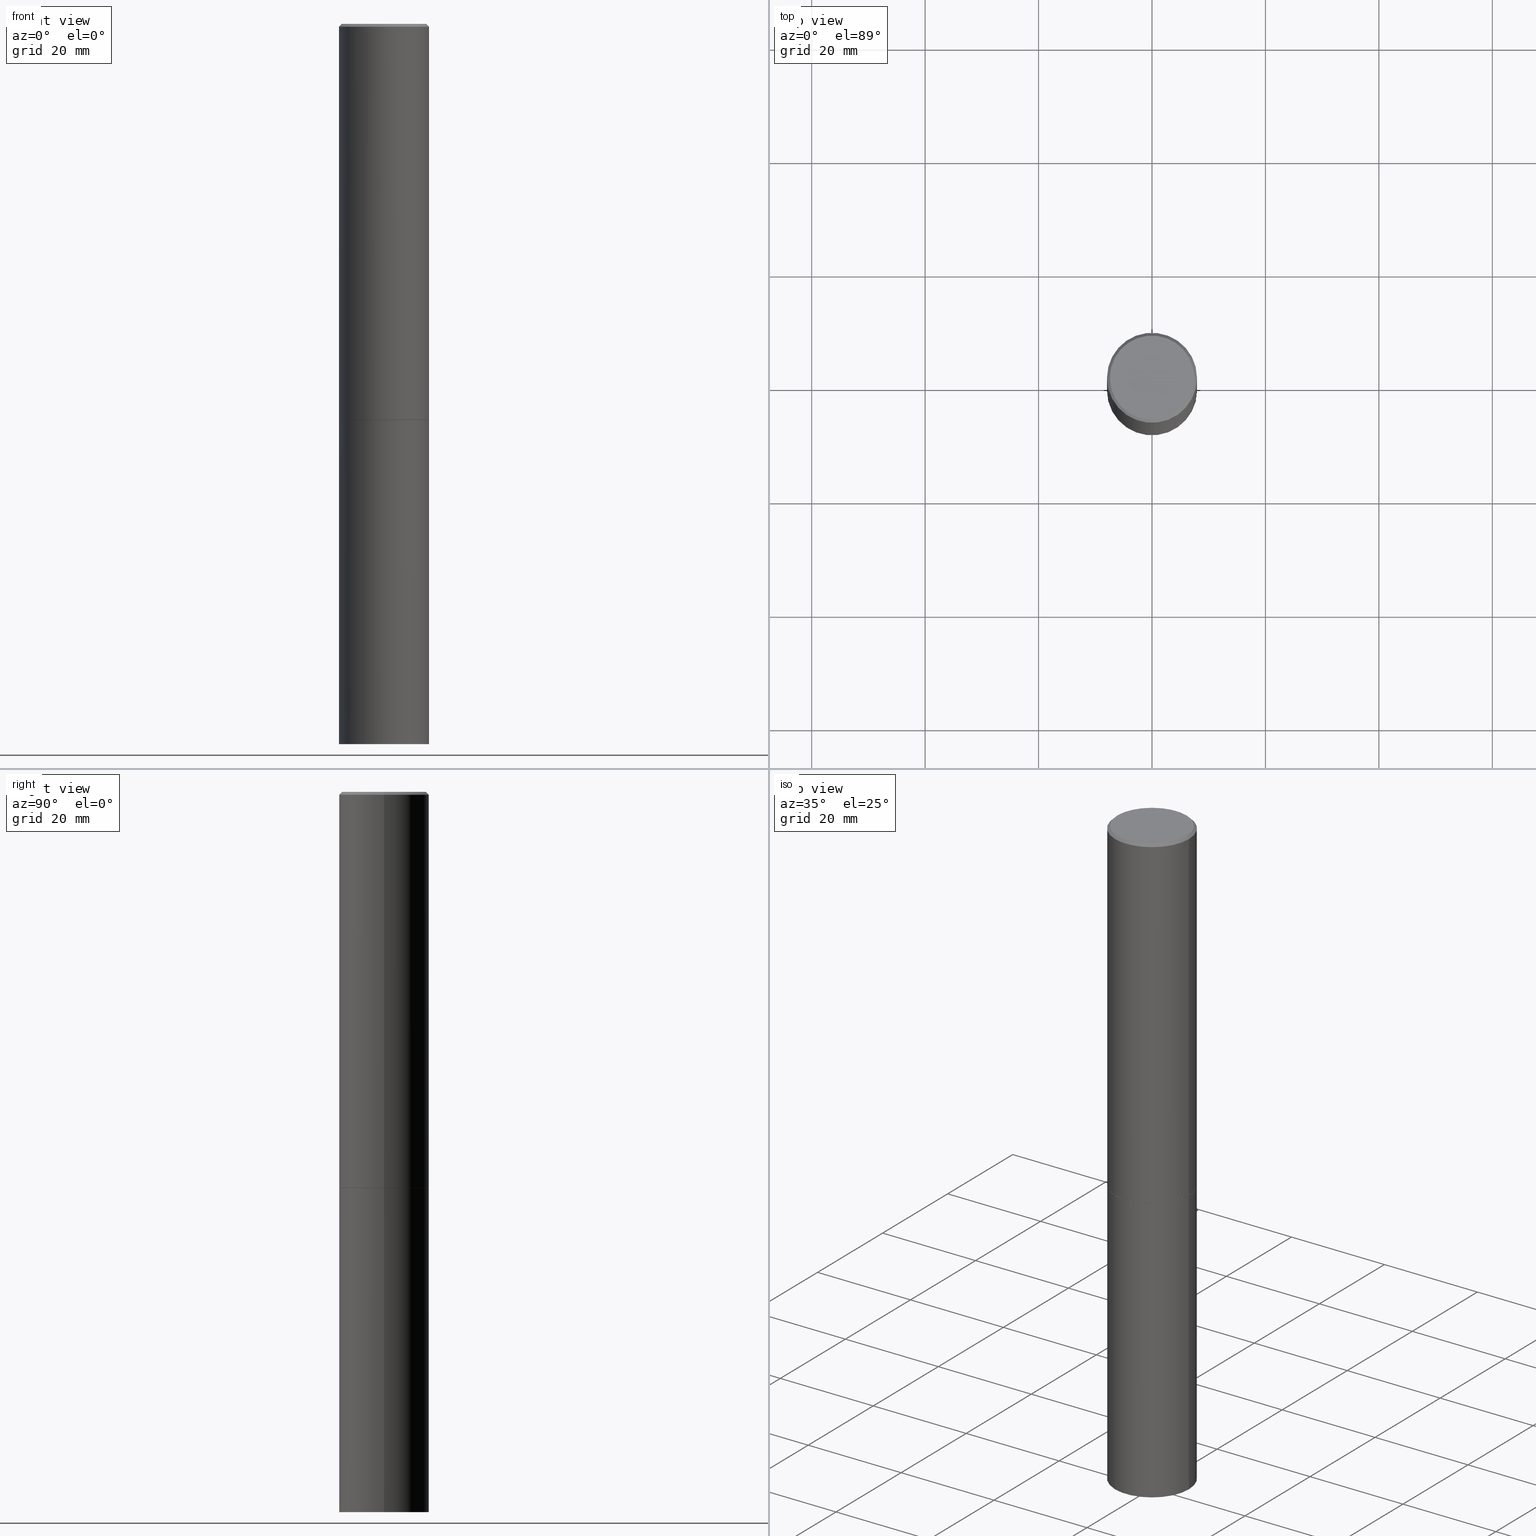
[diagram: canonical four-view strip — front | top / right | iso, engineering-drawing reading convention]
A machine part, canonical four-view strip (front | top / right | iso — engineering-drawing reading convention). The complete STEP part file that produces these views, byte-faithful:
ISO-10303-21;
HEADER;
FILE_DESCRIPTION (( 'STEP AP203' ),
    '1' );
FILE_NAME ('33113.STEP',
    '2023-03-21T20:38:24',
    ( '' ),
    ( '' ),
    'SwSTEP 2.0',
    'SolidWorks 2022',
    '' );
FILE_SCHEMA (( 'CONFIG_CONTROL_DESIGN' ));
ENDSEC;

DATA;
#1 = ORIENTED_EDGE ( 'NONE', *, *, #246, .T. ) ;
#2 = FACE_OUTER_BOUND ( 'NONE', #214, .T. ) ;
#3 = DIRECTION ( 'NONE',  ( -2.445468806185136597E-29, 3.491481338843145583E-15, 1.000000000000000000 ) ) ;
#4 = CLOSED_SHELL ( 'NONE', ( #368, #329, #131, #217, #96, #69, #8, #254 ) ) ;
#5 = AXIS2_PLACEMENT_3D ( 'NONE', #269, #3, #193 ) ;
#6 = DIRECTION ( 'NONE',  ( -2.445468806185136877E-29, 3.491481338843145188E-15, 1.000000000000000000 ) ) ;
#7 = DIRECTION ( 'NONE',  ( -2.445468806185136597E-29, 3.491481338843145583E-15, 1.000000000000000000 ) ) ;
#8 = ADVANCED_FACE ( 'NONE', ( #12 ), #72, .F. ) ;
#9 = VERTEX_POINT ( 'NONE', #172 ) ;
#10 = DIRECTION ( 'NONE',  ( 1.000000000000000000, -6.982962677686269077E-15, 0.000000000000000000 ) ) ;
#11 = CARTESIAN_POINT ( 'NONE',  ( 2.182175836777025400E-15, 0.3124999999999903966, -2.750000000000000888 ) ) ;
#12 = FACE_OUTER_BOUND ( 'NONE', #264, .T. ) ;
#13 = DIRECTION ( 'NONE',  ( 1.000000000000000000, -6.982962677686265922E-15, 0.000000000000000000 ) ) ;
#14 = ADVANCED_FACE ( 'NONE', ( #312 ), #377, .T. ) ;
#15 = CIRCLE ( 'NONE', #196, 0.2924999999999996492 ) ;
#16 = PERSON_AND_ORGANIZATION ( #244, #240 ) ;
#17 = UNCERTAINTY_MEASURE_WITH_UNIT (LENGTH_MEASURE( 1.000000000000000082E-05 ), #94, 'distance_accuracy_value', 'NONE');
#18 = ORIENTED_EDGE ( 'NONE', *, *, #176, .T. ) ;
#19 = CARTESIAN_POINT ( 'NONE',  ( 4.890937612370287172E-31, -6.982962677686310098E-17, -0.02000000000000005593 ) ) ;
#20 = DATE_AND_TIME ( #351, #112 ) ;
#21 = CARTESIAN_POINT ( 'NONE',  ( -0.3125000000000000000, 2.220446049250313081E-15, -1.537167215704658232E-29 ) ) ;
#22 = VERTEX_POINT ( 'NONE', #78 ) ;
#23 = COORDINATED_UNIVERSAL_TIME_OFFSET ( 5, 0, .BEHIND. ) ;
#24 = DIRECTION ( 'NONE',  ( 2.445468806185136597E-29, -3.491481338843145583E-15, -1.000000000000000000 ) ) ;
#25 = AXIS2_PLACEMENT_3D ( 'NONE', #79, #175, #13 ) ;
#26 = PERSON_AND_ORGANIZATION ( #244, #240 ) ;
#27 = ADVANCED_FACE ( 'NONE', ( #375 ), #103, .F. ) ;
#28 = ORIENTED_EDGE ( 'NONE', *, *, #267, .T. ) ;
#29 = ORIENTED_EDGE ( 'NONE', *, *, #335, .T. ) ;
#30 = AXIS2_PLACEMENT_3D ( 'NONE', #372, #24, #253 ) ;
#31 = ORIENTED_EDGE ( 'NONE', *, *, #390, .F. ) ;
#32 = APPROVAL ( #86, 'UNSPECIFIED' ) ;
#33 = CARTESIAN_POINT ( 'NONE',  ( -5.330798331129090803E-19, -1.740022519941044087E-14, -4.983622568974052314 ) ) ;
#34 = DIRECTION ( 'NONE',  ( -2.445468806185136597E-29, 3.491481338843145583E-15, 1.000000000000000000 ) ) ;
#35 = CARTESIAN_POINT ( 'NONE',  ( 0.3125000000000000000, -2.182175836776958347E-15, 1.523805242436230075E-29 ) ) ;
#36 = VERTEX_POINT ( 'NONE', #200 ) ;
#37 = EDGE_CURVE ( 'NONE', #81, #22, #15, .T. ) ;
#38 = DIRECTION ( 'NONE',  ( -2.445468806185136877E-29, 3.491481338843145188E-15, 1.000000000000000000 ) ) ;
#39 = LINE ( 'NONE', #278, #388 ) ;
#40 = AXIS2_PLACEMENT_3D ( 'NONE', #360, #160, #97 ) ;
#41 = APPROVAL ( #82, 'UNSPECIFIED' ) ;
#42 = SECURITY_CLASSIFICATION ( '', '', #53 ) ;
#43 = ORIENTED_EDGE ( 'NONE', *, *, #89, .F. ) ;
#44 =( NAMED_UNIT ( * ) PLANE_ANGLE_UNIT ( ) SI_UNIT ( $, .RADIAN. ) );
#45 = EDGE_CURVE ( 'NONE', #36, #330, #195, .T. ) ;
#46 = VERTEX_POINT ( 'NONE', #306 ) ;
#47 = DATE_AND_TIME ( #199, #294 ) ;
#48 = CARTESIAN_POINT ( 'NONE',  ( 0.3124999999999998890, -1.960131231851933350E-14, -5.000000000000000000 ) ) ;
#49 = DATE_TIME_ROLE ( 'creation_date' ) ;
#50 = CIRCLE ( 'NONE', #207, 0.3124999999999996669 ) ;
#51 = DATE_AND_TIME ( #142, #87 ) ;
#52 = EDGE_CURVE ( 'NONE', #330, #356, #39, .T. ) ;
#53 = SECURITY_CLASSIFICATION_LEVEL ( 'unclassified' ) ;
#54 = DIRECTION ( 'NONE',  ( -2.445468806185136597E-29, 3.491481338843145583E-15, 1.000000000000000000 ) ) ;
#55 = CARTESIAN_POINT ( 'NONE',  ( 0.000000000000000000, 0.000000000000000000, 0.000000000000000000 ) ) ;
#56 = CARTESIAN_POINT ( 'NONE',  ( 0.3124999999999996669, -2.213735251080464545E-15, -0.02000000000000005593 ) ) ;
#57 = EDGE_CURVE ( 'NONE', #46, #373, #145, .T. ) ;
#58 = ORIENTED_EDGE ( 'NONE', *, *, #146, .T. ) ;
#59 = DIMENSIONAL_EXPONENTS ( 1.000000000000000000, 0.000000000000000000, 0.000000000000000000, 0.000000000000000000, 0.000000000000000000, 0.000000000000000000, 0.000000000000000000 ) ;
#60 = VECTOR ( 'NONE', #266, 39.37007874015748143 ) ;
#61 = ORIENTED_EDGE ( 'NONE', *, *, #387, .T. ) ;
#62 = EDGE_CURVE ( 'NONE', #169, #93, #291, .T. ) ;
#63 = PRODUCT_RELATED_PRODUCT_CATEGORY ( 'detail', '', ( #235 ) ) ;
#64 = VERTEX_POINT ( 'NONE', #384 ) ;
#65 = EDGE_CURVE ( 'NONE', #356, #190, #50, .T. ) ;
#66 = ORIENTED_EDGE ( 'NONE', *, *, #37, .F. ) ;
#67 = AXIS2_PLACEMENT_3D ( 'NONE', #302, #163, #366 ) ;
#68 = ORIENTED_EDGE ( 'NONE', *, *, #180, .F. ) ;
#69 = ADVANCED_FACE ( 'NONE', ( #208 ), #263, .T. ) ;
#70 = CARTESIAN_POINT ( 'NONE',  ( 0.000000000000000000, 0.000000000000000000, 0.000000000000000000 ) ) ;
#71 = CARTESIAN_POINT ( 'NONE',  ( 0.3125000000000000000, -1.178025803725676678E-14, -2.749000000000000110 ) ) ;
#72 = PLANE ( 'NONE',  #178 ) ;
#73 = APPROVAL_PERSON_ORGANIZATION ( #85, #41, #76 ) ;
#74 = DIRECTION ( 'NONE',  ( 2.445468806185136597E-29, -3.491481338843145583E-15, -1.000000000000000000 ) ) ;
#75 = DIRECTION ( 'NONE',  ( 2.438088387897960049E-29, -3.491481338843145188E-15, -1.000000000000000000 ) ) ;
#76 = APPROVAL_ROLE ( '' ) ;
#77 = CARTESIAN_POINT ( 'NONE',  ( 6.725039217009124520E-29, -9.601573681818649859E-15, -2.750000000000000000 ) ) ;
#78 = CARTESIAN_POINT ( 'NONE',  ( -0.2924999999999996492, 2.077431396611661822E-15, 4.268512490086005323E-18 ) ) ;
#79 = CARTESIAN_POINT ( 'NONE',  ( 6.725039217009124520E-29, -9.601573681818649859E-15, -2.750000000000000000 ) ) ;
#80 = APPROVAL_ROLE ( '' ) ;
#81 = VERTEX_POINT ( 'NONE', #187 ) ;
#82 = APPROVAL_STATUS ( 'not_yet_approved' ) ;
#83 = AXIS2_PLACEMENT_3D ( 'NONE', #119, #324, #252 ) ;
#84 = DIRECTION ( 'NONE',  ( 0.7071067811865469066, -7.319954787623254468E-15, -0.7071067811865481278 ) ) ;
#85 = PERSON_AND_ORGANIZATION ( #244, #240 ) ;
#86 = APPROVAL_STATUS ( 'not_yet_approved' ) ;
#87 = LOCAL_TIME ( 16, 38, 24.00000000000000000, #23 ) ;
#88 = VECTOR ( 'NONE', #365, 39.37007874015748143 ) ;
#89 = EDGE_CURVE ( 'NONE', #328, #330, #140, .T. ) ;
#90 = FACE_OUTER_BOUND ( 'NONE', #128, .T. ) ;
#91 = EDGE_LOOP ( 'NONE', ( #68, #122, #95, #158 ) ) ;
#92 = CARTESIAN_POINT ( 'NONE',  ( -0.3124999999999996669, 2.112346210000092682E-15, -0.02000000000000005593 ) ) ;
#93 = VERTEX_POINT ( 'NONE', #299 ) ;
#94 =( CONVERSION_BASED_UNIT ( 'INCH', #161 ) LENGTH_UNIT ( ) NAMED_UNIT ( #59 ) );
#95 = ORIENTED_EDGE ( 'NONE', *, *, #194, .T. ) ;
#96 = ADVANCED_FACE ( 'NONE', ( #219 ), #349, .T. ) ;
#97 = DIRECTION ( 'NONE',  ( -1.000000000000000000, 6.982962677686266711E-15, 0.000000000000000000 ) ) ;
#98 = CC_DESIGN_PERSON_AND_ORGANIZATION_ASSIGNMENT ( #380, #379, ( #184 ) ) ;
#99 = CARTESIAN_POINT ( 'NONE',  ( 0.3114999999999999991, -1.177676655591792219E-14, -2.750000000000000000 ) ) ;
#100 = CARTESIAN_POINT ( 'NONE',  ( 1.222734403092568523E-28, -1.745740669421572989E-14, -5.000000000000000000 ) ) ;
#101 = ORIENTED_EDGE ( 'NONE', *, *, #267, .F. ) ;
#102 = EDGE_CURVE ( 'NONE', #328, #190, #258, .T. ) ;
#103 = CONICAL_SURFACE ( 'NONE', #220, 751.2258538476995682, 1.518436449235075925 ) ;
#104 = ORIENTED_EDGE ( 'NONE', *, *, #62, .F. ) ;
#105 = VECTOR ( 'NONE', #239, 39.37007874015748143 ) ;
#106 = CYLINDRICAL_SURFACE ( 'NONE', #137, 0.3124999999999998890 ) ;
#107 = DIRECTION ( 'NONE',  ( -2.445468806185136597E-29, 3.491481338843145583E-15, 1.000000000000000000 ) ) ;
#108 = FACE_OUTER_BOUND ( 'NONE', #255, .T. ) ;
#109 = CC_DESIGN_PERSON_AND_ORGANIZATION_ASSIGNMENT ( #177, #353, ( #42 ) ) ;
#110 = CC_DESIGN_APPROVAL ( #32, ( #42 ) ) ;
#111 = APPROVAL_PERSON_ORGANIZATION ( #16, #166, #151 ) ;
#112 = LOCAL_TIME ( 16, 38, 24.00000000000000000, #348 ) ;
#113 = DIRECTION ( 'NONE',  ( 1.000000000000000000, -6.982962677686265922E-15, 4.876176775795935793E-29 ) ) ;
#114 = DATE_AND_TIME ( #378, #272 ) ;
#115 = ORIENTED_EDGE ( 'NONE', *, *, #390, .T. ) ;
#116 = PERSON_AND_ORGANIZATION ( #244, #240 ) ;
#117 = AXIS2_PLACEMENT_3D ( 'NONE', #274, #288, #10 ) ;
#118 = COORDINATED_UNIVERSAL_TIME_OFFSET ( 5, 0, .BEHIND. ) ;
#119 = CARTESIAN_POINT ( 'NONE',  ( 6.725039217009124520E-29, -9.601573681818649859E-15, -2.750000000000000000 ) ) ;
#120 = CIRCLE ( 'NONE', #270, 0.3124999999999996669 ) ;
#121 = EDGE_CURVE ( 'NONE', #46, #169, #165, .T. ) ;
#122 = ORIENTED_EDGE ( 'NONE', *, *, #273, .F. ) ;
#123 = MECHANICAL_CONTEXT ( 'NONE', #164, 'mechanical' ) ;
#124 = ORIENTED_EDGE ( 'NONE', *, *, #180, .T. ) ;
#125 = ORIENTED_EDGE ( 'NONE', *, *, #89, .T. ) ;
#126 = DIRECTION ( 'NONE',  ( 1.000000000000000000, -6.982962677686269077E-15, 0.000000000000000000 ) ) ;
#127 = CIRCLE ( 'NONE', #179, 0.3125000000000000000 ) ;
#128 = EDGE_LOOP ( 'NONE', ( #29, #325, #43, #213 ) ) ;
#129 =( NAMED_UNIT ( * ) SI_UNIT ( $, .STERADIAN. ) SOLID_ANGLE_UNIT ( ) );
#130 = DIRECTION ( 'NONE',  ( 1.000000000000000000, -6.982962677686269077E-15, 0.000000000000000000 ) ) ;
#131 = ADVANCED_FACE ( 'NONE', ( #334 ), #197, .T. ) ;
#132 = CARTESIAN_POINT ( 'NONE',  ( 0.3124999999999998890, -2.182175836776957558E-15, 1.523805242436229235E-29 ) ) ;
#133 = CC_DESIGN_APPROVAL ( #41, ( #248 ) ) ;
#134 = CARTESIAN_POINT ( 'NONE',  ( 0.3124999999999996669, -2.213735251080464545E-15, -0.02000000000000005593 ) ) ;
#135 = FACE_OUTER_BOUND ( 'NONE', #296, .T. ) ;
#136 = DIRECTION ( 'NONE',  ( 1.000000000000000000, -6.982962677686266711E-15, 4.876067333457695642E-29 ) ) ;
#137 = AXIS2_PLACEMENT_3D ( 'NONE', #70, #305, #310 ) ;
#138 = EDGE_LOOP ( 'NONE', ( #204, #18, #58, #186 ) ) ;
#139 = CARTESIAN_POINT ( 'NONE',  ( 6.725039217009124520E-29, -9.601573681818649859E-15, -2.750000000000000000 ) ) ;
#140 = CIRCLE ( 'NONE', #215, 0.3125000000000000000 ) ;
#141 = CC_DESIGN_SECURITY_CLASSIFICATION ( #42, ( #184 ) ) ;
#142 = CALENDAR_DATE ( 2023, 21, 3 ) ;
#143 = DIRECTION ( 'NONE',  ( -2.445468806185136597E-29, 3.491481338843145583E-15, 1.000000000000000000 ) ) ;
#144 = DIRECTION ( 'NONE',  ( 0.000000000000000000, 0.000000000000000000, 1.000000000000000000 ) ) ;
#145 = LINE ( 'NONE', #206, #314 ) ;
#146 = EDGE_CURVE ( 'NONE', #9, #328, #212, .T. ) ;
#147 = DIRECTION ( 'NONE',  ( 1.000000000000000000, -6.982962677686266711E-15, 0.000000000000000000 ) ) ;
#148 = ORIENTED_EDGE ( 'NONE', *, *, #102, .F. ) ;
#149 = AXIS2_PLACEMENT_3D ( 'NONE', #55, #144, #292 ) ;
#150 = APPROVAL_DATE_TIME ( #51, #32 ) ;
#151 = APPROVAL_ROLE ( '' ) ;
#152 = CARTESIAN_POINT ( 'NONE',  ( 4.890937612370287172E-31, -6.982962677686310098E-17, -0.02000000000000005593 ) ) ;
#153 = DIRECTION ( 'NONE',  ( 1.000000000000000000, -6.982962677686266711E-15, 4.876176775795936353E-29 ) ) ;
#154 = CARTESIAN_POINT ( 'NONE',  ( 6.722593748202941159E-29, -9.598082200479808430E-15, -2.749000000000000110 ) ) ;
#155 = ORIENTED_EDGE ( 'NONE', *, *, #273, .T. ) ;
#156 = DIRECTION ( 'NONE',  ( -1.000000000000000000, 6.982962677686266711E-15, 0.000000000000000000 ) ) ;
#157 = CONICAL_SURFACE ( 'NONE', #370, 0.3124999999999996669, 0.7853981633974473908 ) ;
#158 = ORIENTED_EDGE ( 'NONE', *, *, #65, .T. ) ;
#159 = EDGE_LOOP ( 'NONE', ( #66, #124, #189, #227 ) ) ;
#160 = DIRECTION ( 'NONE',  ( 2.445468806185136597E-29, -3.491481338843145583E-15, -1.000000000000000000 ) ) ;
#161 = LENGTH_MEASURE_WITH_UNIT ( LENGTH_MEASURE( 0.02539999999999999897 ), #228 );
#162 = DIRECTION ( 'NONE',  ( 1.000000000000000000, -6.982962677686265922E-15, 0.000000000000000000 ) ) ;
#163 = DIRECTION ( 'NONE',  ( 2.438088387897960049E-29, -3.491481338843145188E-15, -1.000000000000000000 ) ) ;
#164 = APPLICATION_CONTEXT ( 'configuration controlled 3d designs of mechanical parts and assemblies' ) ;
#165 = LINE ( 'NONE', #33, #88 ) ;
#166 = APPROVAL ( #218, 'UNSPECIFIED' ) ;
#167 = LINE ( 'NONE', #35, #303 ) ;
#168 = ADVANCED_FACE ( 'NONE', ( #2 ), #283, .F. ) ;
#169 = VERTEX_POINT ( 'NONE', #221 ) ;
#170 = AXIS2_PLACEMENT_3D ( 'NONE', #374, #280, #352 ) ;
#171 = CARTESIAN_POINT ( 'NONE',  ( 1.084655929903340106E-27, -1.548601204294555356E-13, -44.35370130913153019 ) ) ;
#172 = CARTESIAN_POINT ( 'NONE',  ( 0.3114999999999999991, -1.177676655591792219E-14, -2.750000000000000000 ) ) ;
#173 = CC_DESIGN_PERSON_AND_ORGANIZATION_ASSIGNMENT ( #116, #289, ( #235 ) ) ;
#174 = DIRECTION ( 'NONE',  ( -2.445468806185136597E-29, 3.491481338843145583E-15, 1.000000000000000000 ) ) ;
#175 = DIRECTION ( 'NONE',  ( -2.445468806185136597E-29, 3.491481338843145583E-15, 1.000000000000000000 ) ) ;
#176 = EDGE_CURVE ( 'NONE', #36, #9, #286, .T. ) ;
#177 = PERSON_AND_ORGANIZATION ( #244, #240 ) ;
#178 = AXIS2_PLACEMENT_3D ( 'NONE', #139, #344, #113 ) ;
#179 = AXIS2_PLACEMENT_3D ( 'NONE', #100, #275, #242 ) ;
#180 = EDGE_CURVE ( 'NONE', #81, #190, #340, .T. ) ;
#181 = ADVANCED_BREP_SHAPE_REPRESENTATION ( '33113', ( #332, #327, #149 ), #308 ) ;
#182 = SHAPE_DEFINITION_REPRESENTATION ( #298, #181 ) ;
#183 = DIRECTION ( 'NONE',  ( 1.000000000000000000, -6.982962677686266711E-15, 4.876176775795935232E-29 ) ) ;
#184 = PRODUCT_DEFINITION_FORMATION_WITH_SPECIFIED_SOURCE ( 'ANY', '', #235, .NOT_KNOWN. ) ;
#185 = DIRECTION ( 'NONE',  ( 0.9986295347545743883, -7.033825938271991601E-15, -0.05233595624293465448 ) ) ;
#186 = ORIENTED_EDGE ( 'NONE', *, *, #246, .F. ) ;
#187 = CARTESIAN_POINT ( 'NONE',  ( 0.2924999999999996492, -2.110215457714317564E-15, 4.268512490114932791E-18 ) ) ;
#188 = DIRECTION ( 'NONE',  ( 1.000000000000000000, -6.982962677686269077E-15, 0.000000000000000000 ) ) ;
#189 = ORIENTED_EDGE ( 'NONE', *, *, #385, .T. ) ;
#190 = VERTEX_POINT ( 'NONE', #56 ) ;
#191 = ADVANCED_FACE ( 'NONE', ( #317 ), #315, .F. ) ;
#192 = CIRCLE ( 'NONE', #376, 0.3125000000000000000 ) ;
#193 = DIRECTION ( 'NONE',  ( 1.000000000000000000, -6.982962677686265922E-15, 0.000000000000000000 ) ) ;
#194 = EDGE_CURVE ( 'NONE', #22, #356, #311, .T. ) ;
#195 = LINE ( 'NONE', #247, #285 ) ;
#196 = AXIS2_PLACEMENT_3D ( 'NONE', #287, #7, #136 ) ;
#197 = CONICAL_SURFACE ( 'NONE', #40, 0.3124999999999996669, 0.7853981633974473908 ) ;
#198 = EDGE_CURVE ( 'NONE', #373, #64, #167, .T. ) ;
#199 = CALENDAR_DATE ( 2023, 21, 3 ) ;
#200 = CARTESIAN_POINT ( 'NONE',  ( -0.3114999999999999991, -7.382934605577716173E-15, -2.750000000000000000 ) ) ;
#201 = DIRECTION ( 'NONE',  ( -1.000000000000000000, 6.982962677686265922E-15, -4.876176775795935793E-29 ) ) ;
#202 = AXIS2_PLACEMENT_3D ( 'NONE', #381, #54, #183 ) ;
#203 = PERSON_AND_ORGANIZATION ( #244, #240 ) ;
#204 = ORIENTED_EDGE ( 'NONE', *, *, #45, .F. ) ;
#205 = CALENDAR_DATE ( 2023, 21, 3 ) ;
#206 = CARTESIAN_POINT ( 'NONE',  ( 5.330798333566549667E-19, -1.740022519941044087E-14, -4.983622568974052314 ) ) ;
#207 = AXIS2_PLACEMENT_3D ( 'NONE', #152, #261, #147 ) ;
#208 = FACE_OUTER_BOUND ( 'NONE', #138, .T. ) ;
#209 = DIRECTION ( 'NONE',  ( -2.445468806185136597E-29, 3.491481338843145583E-15, 1.000000000000000000 ) ) ;
#210 = ORIENTED_EDGE ( 'NONE', *, *, #335, .F. ) ;
#211 = ADVANCED_FACE ( 'NONE', ( #108 ), #309, .T. ) ;
#212 = LINE ( 'NONE', #99, #60 ) ;
#213 = ORIENTED_EDGE ( 'NONE', *, *, #146, .F. ) ;
#214 = EDGE_LOOP ( 'NONE', ( #276, #61 ) ) ;
#215 = AXIS2_PLACEMENT_3D ( 'NONE', #386, #223, #188 ) ;
#216 = CIRCLE ( 'NONE', #357, 0.2924999999999996492 ) ;
#217 = ADVANCED_FACE ( 'NONE', ( #259 ), #157, .T. ) ;
#218 = APPROVAL_STATUS ( 'not_yet_approved' ) ;
#219 = FACE_OUTER_BOUND ( 'NONE', #229, .T. ) ;
#220 = AXIS2_PLACEMENT_3D ( 'NONE', #171, #74, #347 ) ;
#221 = CARTESIAN_POINT ( 'NONE',  ( -0.3124999999999998890, -1.527523085743876996E-14, -5.000000000000000000 ) ) ;
#222 = AXIS2_PLACEMENT_3D ( 'NONE', #11, #75, #201 ) ;
#223 = DIRECTION ( 'NONE',  ( -2.445468806185136597E-29, 3.491481338843145583E-15, 1.000000000000000000 ) ) ;
#224 = DIRECTION ( 'NONE',  ( -0.7071067811865469066, 2.468850131082250355E-15, -0.7071067811865481278 ) ) ;
#225 = EDGE_LOOP ( 'NONE', ( #28, #382, #236, #363 ) ) ;
#226 = PERSON_AND_ORGANIZATION ( #244, #240 ) ;
#227 = ORIENTED_EDGE ( 'NONE', *, *, #194, .F. ) ;
#228 =( LENGTH_UNIT ( ) NAMED_UNIT ( * ) SI_UNIT ( $, .METRE. ) );
#229 = EDGE_LOOP ( 'NONE', ( #238, #1, #241, #322 ) ) ;
#230 = APPROVAL_PERSON_ORGANIZATION ( #26, #32, #80 ) ;
#231 = AXIS2_PLACEMENT_3D ( 'NONE', #250, #174, #279 ) ;
#232 = VECTOR ( 'NONE', #224, 39.37007874015748143 ) ;
#233 = ORIENTED_EDGE ( 'NONE', *, *, #57, .F. ) ;
#234 = FACE_OUTER_BOUND ( 'NONE', #318, .T. ) ;
#235 = PRODUCT ( '33113', '33113', '', ( #123 ) ) ;
#236 = ORIENTED_EDGE ( 'NONE', *, *, #346, .F. ) ;
#237 = DIRECTION ( 'NONE',  ( 1.000000000000000000, -6.982962677686266711E-15, 4.876067333457695642E-29 ) ) ;
#238 = ORIENTED_EDGE ( 'NONE', *, *, #52, .F. ) ;
#239 = DIRECTION ( 'NONE',  ( -2.445468806185136877E-29, 3.491481338843145188E-15, 1.000000000000000000 ) ) ;
#240 = ORGANIZATION ( 'UNSPECIFIED', 'UNSPECIFIED', '' ) ;
#241 = ORIENTED_EDGE ( 'NONE', *, *, #102, .T. ) ;
#242 = DIRECTION ( 'NONE',  ( 1.000000000000000000, -6.982962677686269077E-15, 0.000000000000000000 ) ) ;
#243 = CARTESIAN_POINT ( 'NONE',  ( 0.000000000000000000, 0.000000000000000000, 0.000000000000000000 ) ) ;
#244 = PERSON ( 'UNSPECIFIED', 'UNSPECIFIED', 'UNSPECIFIED', ('UNSPECIFIED'), ('UNSPECIFIED'), ('UNSPECIFIED') ) ;
#245 = AXIS2_PLACEMENT_3D ( 'NONE', #77, #34, #162 ) ;
#246 = EDGE_CURVE ( 'NONE', #330, #328, #336, .T. ) ;
#247 = CARTESIAN_POINT ( 'NONE',  ( -0.3114999999999999991, -7.388233059925938575E-15, -2.750000000000000000 ) ) ;
#248 = PRODUCT_DEFINITION ( 'UNKNOWN', '', #184, #281 ) ;
#249 = CARTESIAN_POINT ( 'NONE',  ( -0.3125000000000000000, -2.613509864378020417E-15, -2.749000000000000110 ) ) ;
#250 = CARTESIAN_POINT ( 'NONE',  ( 0.000000000000000000, 0.000000000000000000, 0.000000000000000000 ) ) ;
#251 = AXIS2_PLACEMENT_3D ( 'NONE', #243, #209, #153 ) ;
#252 = DIRECTION ( 'NONE',  ( 1.000000000000000000, -6.982962677686265922E-15, 0.000000000000000000 ) ) ;
#253 = DIRECTION ( 'NONE',  ( -1.000000000000000000, 6.982962677686266711E-15, 0.000000000000000000 ) ) ;
#254 = ADVANCED_FACE ( 'NONE', ( #234 ), #361, .F. ) ;
#255 = EDGE_LOOP ( 'NONE', ( #104, #115, #301, #359 ) ) ;
#256 = VECTOR ( 'NONE', #84, 39.37007874015748143 ) ;
#257 = PERSON_AND_ORGANIZATION_ROLE ( 'creator' ) ;
#258 = LINE ( 'NONE', #132, #105 ) ;
#259 = FACE_OUTER_BOUND ( 'NONE', #91, .T. ) ;
#260 = DATE_TIME_ROLE ( 'classification_date' ) ;
#261 = DIRECTION ( 'NONE',  ( -2.445468806185136597E-29, 3.491481338843145583E-15, 1.000000000000000000 ) ) ;
#262 = CARTESIAN_POINT ( 'NONE',  ( -0.3124999999999996669, 2.112346210000092682E-15, -0.02000000000000005593 ) ) ;
#263 = CONICAL_SURFACE ( 'NONE', #83, 0.3114999999999999991, 0.7853981633975507526 ) ;
#264 = EDGE_LOOP ( 'NONE', ( #210, #364 ) ) ;
#265 = EDGE_LOOP ( 'NONE', ( #233, #383, #101 ) ) ;
#266 = DIRECTION ( 'NONE',  ( 0.7071067811866199593, -2.468850131083015945E-15, 0.7071067811864750752 ) ) ;
#267 = EDGE_CURVE ( 'NONE', #373, #169, #127, .T. ) ;
#268 = DIRECTION ( 'NONE',  ( -2.445468806185136597E-29, 3.491481338843145583E-15, 1.000000000000000000 ) ) ;
#269 = CARTESIAN_POINT ( 'NONE',  ( 6.725039217009124520E-29, -9.601573681818649859E-15, -2.750000000000000000 ) ) ;
#270 = AXIS2_PLACEMENT_3D ( 'NONE', #19, #143, #342 ) ;
#271 = CARTESIAN_POINT ( 'NONE',  ( 6.725039217009124520E-29, -9.601573681818649859E-15, -2.750000000000000000 ) ) ;
#272 = LOCAL_TIME ( 16, 38, 24.00000000000000000, #118 ) ;
#273 = EDGE_CURVE ( 'NONE', #22, #81, #216, .T. ) ;
#274 = CARTESIAN_POINT ( 'NONE',  ( 6.725039217009124520E-29, -9.601573681818649859E-15, -2.750000000000000000 ) ) ;
#275 = DIRECTION ( 'NONE',  ( -2.445468806185136597E-29, 3.491481338843145583E-15, 1.000000000000000000 ) ) ;
#276 = ORIENTED_EDGE ( 'NONE', *, *, #346, .T. ) ;
#277 = CONICAL_SURFACE ( 'NONE', #25, 0.3114999999999999991, 0.7853981633975507526 ) ;
#278 = CARTESIAN_POINT ( 'NONE',  ( -0.3124999999999998890, 2.220446049250312292E-15, -1.537167215704657391E-29 ) ) ;
#279 = DIRECTION ( 'NONE',  ( 1.000000000000000000, -6.982962677686266711E-15, 4.876176775795936353E-29 ) ) ;
#280 = DIRECTION ( 'NONE',  ( -2.445468806185136597E-29, 3.491481338843145583E-15, 1.000000000000000000 ) ) ;
#281 = DESIGN_CONTEXT ( 'detailed design', #326, 'design' ) ;
#282 = COORDINATED_UNIVERSAL_TIME_OFFSET ( 5, 0, .BEHIND. ) ;
#283 = PLANE ( 'NONE',  #222 ) ;
#284 = ORIENTED_EDGE ( 'NONE', *, *, #52, .T. ) ;
#285 = VECTOR ( 'NONE', #371, 39.37007874015748143 ) ;
#286 = CIRCLE ( 'NONE', #5, 0.3114999999999999991 ) ;
#287 = CARTESIAN_POINT ( 'NONE',  ( -1.043851414335219820E-46, 1.490343170380447200E-32, 4.268512490100411279E-18 ) ) ;
#288 = DIRECTION ( 'NONE',  ( -2.445468806185136597E-29, 3.491481338843145583E-15, 1.000000000000000000 ) ) ;
#289 = PERSON_AND_ORGANIZATION_ROLE ( 'design_owner' ) ;
#290 = APPLICATION_PROTOCOL_DEFINITION ( 'international standard', 'config_control_design', 1994, #326 ) ;
#291 = LINE ( 'NONE', #21, #369 ) ;
#292 = DIRECTION ( 'NONE',  ( 1.000000000000000000, 0.000000000000000000, 0.000000000000000000 ) ) ;
#293 = CC_DESIGN_DATE_AND_TIME_ASSIGNMENT ( #295, #49, ( #248 ) ) ;
#294 = LOCAL_TIME ( 16, 38, 24.00000000000000000, #345 ) ;
#295 = DATE_AND_TIME ( #205, #343 ) ;
#296 = EDGE_LOOP ( 'NONE', ( #125, #284, #300, #148 ) ) ;
#297 = CARTESIAN_POINT ( 'NONE',  ( 4.890937612370287172E-31, -6.982962677686310098E-17, -0.02000000000000005593 ) ) ;
#298 = PRODUCT_DEFINITION_SHAPE ( 'NONE', 'NONE',  #248 ) ;
#299 = CARTESIAN_POINT ( 'NONE',  ( -0.3125000000000000000, -1.130904413876687600E-14, -2.750000000000000000 ) ) ;
#300 = ORIENTED_EDGE ( 'NONE', *, *, #385, .F. ) ;
#301 = ORIENTED_EDGE ( 'NONE', *, *, #198, .T. ) ;
#302 = CARTESIAN_POINT ( 'NONE',  ( 2.042516583223230173E-15, 0.2924999999999996492, -1.019124035366568620E-15 ) ) ;
#303 = VECTOR ( 'NONE', #6, 39.37007874015748143 ) ;
#304 = EDGE_LOOP ( 'NONE', ( #367, #389, #31 ) ) ;
#305 = DIRECTION ( 'NONE',  ( -2.445468806185136597E-29, 3.491481338843145583E-15, 1.000000000000000000 ) ) ;
#306 = CARTESIAN_POINT ( 'NONE',  ( 1.218692128656831074E-28, -1.740075827924367436E-14, -4.983622568974052314 ) ) ;
#307 = CLOSED_SHELL ( 'NONE', ( #14, #191, #27, #211, #168 ) ) ;
#308 =( GEOMETRIC_REPRESENTATION_CONTEXT ( 3 ) GLOBAL_UNCERTAINTY_ASSIGNED_CONTEXT ( ( #17 ) ) GLOBAL_UNIT_ASSIGNED_CONTEXT ( ( #94, #44, #129 ) ) REPRESENTATION_CONTEXT ( 'NONE', 'WORKASPACE' ) );
#309 = CYLINDRICAL_SURFACE ( 'NONE', #251, 0.3125000000000000000 ) ;
#310 = DIRECTION ( 'NONE',  ( 1.000000000000000000, -6.982962677686266711E-15, 4.876176775795935232E-29 ) ) ;
#311 = LINE ( 'NONE', #262, #232 ) ;
#312 = FACE_OUTER_BOUND ( 'NONE', #225, .T. ) ;
#313 = PERSON_AND_ORGANIZATION_ROLE ( 'creator' ) ;
#314 = VECTOR ( 'NONE', #185, 39.37007874015748143 ) ;
#315 = CONICAL_SURFACE ( 'NONE', #30, 751.2258538476995682, 1.518436449235075925 ) ;
#316 = APPROVAL_DATE_TIME ( #47, #41 ) ;
#317 = FACE_OUTER_BOUND ( 'NONE', #304, .T. ) ;
#318 = EDGE_LOOP ( 'NONE', ( #155, #341 ) ) ;
#319 = APPROVAL_DATE_TIME ( #20, #166 ) ;
#320 = APPLICATION_PROTOCOL_DEFINITION ( 'international standard', 'config_control_design', 1994, #164 ) ;
#321 = DIRECTION ( 'NONE',  ( -2.445468806185136877E-29, 3.491481338843145188E-15, 1.000000000000000000 ) ) ;
#322 = ORIENTED_EDGE ( 'NONE', *, *, #65, .F. ) ;
#323 = AXIS2_PLACEMENT_3D ( 'NONE', #154, #358, #130 ) ;
#324 = DIRECTION ( 'NONE',  ( -2.445468806185136597E-29, 3.491481338843145583E-15, 1.000000000000000000 ) ) ;
#325 = ORIENTED_EDGE ( 'NONE', *, *, #45, .T. ) ;
#326 = APPLICATION_CONTEXT ( 'configuration controlled 3d designs of mechanical parts and assemblies' ) ;
#327 = MANIFOLD_SOLID_BREP ( 'Body-Move/Copy2[2]', #4 ) ;
#328 = VERTEX_POINT ( 'NONE', #71 ) ;
#329 = ADVANCED_FACE ( 'NONE', ( #135 ), #106, .T. ) ;
#330 = VERTEX_POINT ( 'NONE', #249 ) ;
#331 = CIRCLE ( 'NONE', #170, 0.3125000000000000000 ) ;
#332 = MANIFOLD_SOLID_BREP ( 'Body-Move/Copy2[1]', #307 ) ;
#333 = CIRCLE ( 'NONE', #117, 0.3125000000000000000 ) ;
#334 = FACE_OUTER_BOUND ( 'NONE', #159, .T. ) ;
#335 = EDGE_CURVE ( 'NONE', #9, #36, #350, .T. ) ;
#336 = CIRCLE ( 'NONE', #323, 0.3125000000000000000 ) ;
#337 = CARTESIAN_POINT ( 'NONE',  ( -1.043851414335219820E-46, 1.490343170380447200E-32, 4.268512490100411279E-18 ) ) ;
#338 = CC_DESIGN_APPROVAL ( #166, ( #184 ) ) ;
#339 = CC_DESIGN_PERSON_AND_ORGANIZATION_ASSIGNMENT ( #203, #257, ( #184 ) ) ;
#340 = LINE ( 'NONE', #134, #256 ) ;
#341 = ORIENTED_EDGE ( 'NONE', *, *, #37, .T. ) ;
#342 = DIRECTION ( 'NONE',  ( 1.000000000000000000, -6.982962677686266711E-15, 0.000000000000000000 ) ) ;
#343 = LOCAL_TIME ( 16, 38, 24.00000000000000000, #282 ) ;
#344 = DIRECTION ( 'NONE',  ( -2.438088387897960049E-29, 3.491481338843145188E-15, 1.000000000000000000 ) ) ;
#345 = COORDINATED_UNIVERSAL_TIME_OFFSET ( 5, 0, .BEHIND. ) ;
#346 = EDGE_CURVE ( 'NONE', #64, #93, #192, .T. ) ;
#347 = DIRECTION ( 'NONE',  ( -1.000000000000000000, 6.982962677686266711E-15, 0.000000000000000000 ) ) ;
#348 = COORDINATED_UNIVERSAL_TIME_OFFSET ( 5, 0, .BEHIND. ) ;
#349 = CYLINDRICAL_SURFACE ( 'NONE', #202, 0.3124999999999998890 ) ;
#350 = CIRCLE ( 'NONE', #245, 0.3114999999999999991 ) ;
#351 = CALENDAR_DATE ( 2023, 21, 3 ) ;
#352 = DIRECTION ( 'NONE',  ( 1.000000000000000000, -6.982962677686269077E-15, 0.000000000000000000 ) ) ;
#353 = PERSON_AND_ORGANIZATION_ROLE ( 'classification_officer' ) ;
#354 = DIRECTION ( 'NONE',  ( 2.445468806185136597E-29, -3.491481338843145583E-15, -1.000000000000000000 ) ) ;
#355 = CC_DESIGN_DATE_AND_TIME_ASSIGNMENT ( #114, #260, ( #42 ) ) ;
#356 = VERTEX_POINT ( 'NONE', #92 ) ;
#357 = AXIS2_PLACEMENT_3D ( 'NONE', #337, #107, #237 ) ;
#358 = DIRECTION ( 'NONE',  ( -2.445468806185136597E-29, 3.491481338843145583E-15, 1.000000000000000000 ) ) ;
#359 = ORIENTED_EDGE ( 'NONE', *, *, #387, .F. ) ;
#360 = CARTESIAN_POINT ( 'NONE',  ( 4.890937612370287172E-31, -6.982962677686310098E-17, -0.02000000000000005593 ) ) ;
#361 = PLANE ( 'NONE',  #67 ) ;
#362 = CC_DESIGN_PERSON_AND_ORGANIZATION_ASSIGNMENT ( #226, #313, ( #248 ) ) ;
#363 = ORIENTED_EDGE ( 'NONE', *, *, #198, .F. ) ;
#364 = ORIENTED_EDGE ( 'NONE', *, *, #176, .F. ) ;
#365 = DIRECTION ( 'NONE',  ( -0.9986295347545743883, 6.790662755453674777E-15, -0.05233595624293465448 ) ) ;
#366 = DIRECTION ( 'NONE',  ( -1.000000000000000000, 6.982962677686265922E-15, -4.876176775795935793E-29 ) ) ;
#367 = ORIENTED_EDGE ( 'NONE', *, *, #121, .F. ) ;
#368 = ADVANCED_FACE ( 'NONE', ( #90 ), #277, .T. ) ;
#369 = VECTOR ( 'NONE', #321, 39.37007874015748143 ) ;
#370 = AXIS2_PLACEMENT_3D ( 'NONE', #297, #354, #156 ) ;
#371 = DIRECTION ( 'NONE',  ( -0.7071067811866199593, 7.493145998870616062E-15, 0.7071067811864750752 ) ) ;
#372 = CARTESIAN_POINT ( 'NONE',  ( 1.084655929903340106E-27, -1.548601204294555356E-13, -44.35370130913153019 ) ) ;
#373 = VERTEX_POINT ( 'NONE', #48 ) ;
#374 = CARTESIAN_POINT ( 'NONE',  ( 1.222734403092568523E-28, -1.745740669421572989E-14, -5.000000000000000000 ) ) ;
#375 = FACE_OUTER_BOUND ( 'NONE', #265, .T. ) ;
#376 = AXIS2_PLACEMENT_3D ( 'NONE', #271, #268, #126 ) ;
#377 = CYLINDRICAL_SURFACE ( 'NONE', #231, 0.3125000000000000000 ) ;
#378 = CALENDAR_DATE ( 2023, 21, 3 ) ;
#379 = PERSON_AND_ORGANIZATION_ROLE ( 'design_supplier' ) ;
#380 = PERSON_AND_ORGANIZATION ( #244, #240 ) ;
#381 = CARTESIAN_POINT ( 'NONE',  ( 0.000000000000000000, 0.000000000000000000, 0.000000000000000000 ) ) ;
#382 = ORIENTED_EDGE ( 'NONE', *, *, #62, .T. ) ;
#383 = ORIENTED_EDGE ( 'NONE', *, *, #121, .T. ) ;
#384 = CARTESIAN_POINT ( 'NONE',  ( 0.3125000000000000000, -1.178374951859560978E-14, -2.750000000000000000 ) ) ;
#385 = EDGE_CURVE ( 'NONE', #190, #356, #120, .T. ) ;
#386 = CARTESIAN_POINT ( 'NONE',  ( 6.722593748202941159E-29, -9.598082200479808430E-15, -2.749000000000000110 ) ) ;
#387 = EDGE_CURVE ( 'NONE', #93, #64, #333, .T. ) ;
#388 = VECTOR ( 'NONE', #38, 39.37007874015748143 ) ;
#389 = ORIENTED_EDGE ( 'NONE', *, *, #57, .T. ) ;
#390 = EDGE_CURVE ( 'NONE', #169, #373, #331, .T. ) ;
ENDSEC;
END-ISO-10303-21;
